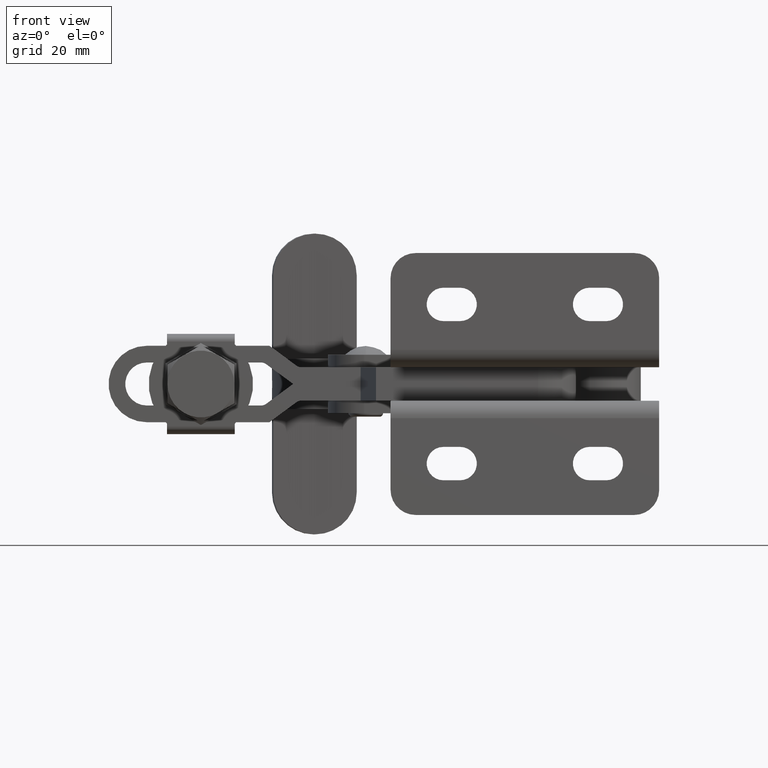
[diagram: clean part render]
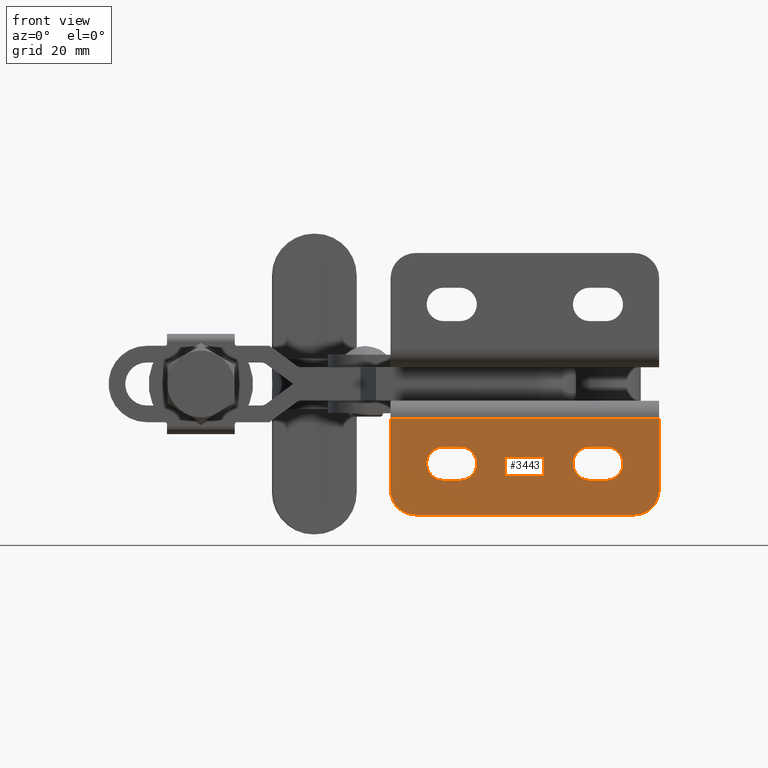
[diagram: same view with one face highlighted and labeled with its STEP entity id]
A machine part, front view. The second image highlights one B-rep face of the part: STEP entity #3443.
In plain terms, the highlighted planar face has unit normal (0, -1, 0).
Its self-contained STEP definition (entity closure, byte-faithful):
#70 = EDGE_CURVE ( 'NONE', #12517, #8680, #4146, .T. ) ;
#127 = AXIS2_PLACEMENT_3D ( 'NONE', #6460, #12532, #5439 ) ;
#146 = CARTESIAN_POINT ( 'NONE',  ( 13.36506738242341000, -52.70000000000002400, -18.67170454773021100 ) ) ;
#157 = CARTESIAN_POINT ( 'NONE',  ( -3.284932617576591200, -52.70000000000004500, -23.05000000000008600 ) ) ;
#175 = DIRECTION ( 'NONE',  ( -1.000000000000000000, -0.0000000000000000000, -0.0000000000000000000 ) ) ;
#487 = VECTOR ( 'NONE', #1230, 1000.000000000000000 ) ;
#501 = EDGE_CURVE ( 'NONE', #9544, #12517, #11744, .T. ) ;
#526 = AXIS2_PLACEMENT_3D ( 'NONE', #8471, #2386, #9485 ) ;
#624 = DIRECTION ( 'NONE',  ( 0.0000000000000000000, 0.0000000000000000000, 1.000000000000000000 ) ) ;
#636 = ORIENTED_EDGE ( 'NONE', *, *, #6320, .T. ) ;
#836 = ORIENTED_EDGE ( 'NONE', *, *, #2253, .T. ) ;
#1006 = CARTESIAN_POINT ( 'NONE',  ( -34.28493261757659400, -52.70000000000004500, -23.05000000000008600 ) ) ;
#1057 = CARTESIAN_POINT ( 'NONE',  ( 13.36506738242341000, -52.70000000000002400, -29.34999999999995200 ) ) ;
#1170 = DIRECTION ( 'NONE',  ( 0.0000000000000000000, 0.0000000000000000000, -1.000000000000000000 ) ) ;
#1181 = CARTESIAN_POINT ( 'NONE',  ( -38.28493261757659400, -52.70000000000004500, -19.05000000000008200 ) ) ;
#1190 = VERTEX_POINT ( 'NONE', #9701 ) ;
#1191 = DIRECTION ( 'NONE',  ( 1.000000000000000000, -0.0000000000000000000, -0.0000000000000000000 ) ) ;
#1230 = DIRECTION ( 'NONE',  ( 1.000000000000000000, 0.0000000000000000000, 0.0000000000000000000 ) ) ;
#1315 = CARTESIAN_POINT ( 'NONE',  ( -50.93493261757669900, -52.70000000000002400, -23.77500000000002700 ) ) ;
#1678 = LINE ( 'NONE', #7186, #12169 ) ;
#1685 = CARTESIAN_POINT ( 'NONE',  ( 0.7150673824234087300, -52.70000000000002400, -19.05000000000008200 ) ) ;
#1772 = DIRECTION ( 'NONE',  ( 1.000000000000000000, 0.0000000000000000000, 0.0000000000000000000 ) ) ;
#1777 = AXIS2_PLACEMENT_3D ( 'NONE', #3399, #10515, #4415 ) ;
#1917 = VERTEX_POINT ( 'NONE', #1181 ) ;
#1998 = DIRECTION ( 'NONE',  ( 0.0000000000000000000, 0.0000000000000000000, -1.000000000000000000 ) ) ;
#2195 = VERTEX_POINT ( 'NONE', #9770 ) ;
#2253 = EDGE_CURVE ( 'NONE', #10816, #12360, #7454, .T. ) ;
#2308 = DIRECTION ( 'NONE',  ( -0.0000000000000000000, -0.0000000000000000000, -1.000000000000000000 ) ) ;
#2386 = DIRECTION ( 'NONE',  ( 0.0000000000000000000, 1.000000000000000000, 2.635945084823746800E-016 ) ) ;
#2643 = EDGE_CURVE ( 'NONE', #7300, #7817, #6809, .T. ) ;
#2806 = FACE_BOUND ( 'NONE', #12175, .T. ) ;
#2833 = LINE ( 'NONE', #1315, #10311 ) ;
#2840 = CARTESIAN_POINT ( 'NONE',  ( -44.93493261757657100, -52.70000000000002400, -35.35000000000007200 ) ) ;
#3316 = LINE ( 'NONE', #146, #11093 ) ;
#3331 = CARTESIAN_POINT ( 'NONE',  ( -3.284932617576591200, -52.70000000000004500, -27.05000000000008200 ) ) ;
#3399 = CARTESIAN_POINT ( 'NONE',  ( 7.365067382423280400, -52.70000000000002400, -29.34999999999995200 ) ) ;
#3420 = ORIENTED_EDGE ( 'NONE', *, *, #12192, .F. ) ;
#3443 = ADVANCED_FACE ( 'NONE', ( #10895, #2806, #7881 ), #4632, .T. ) ;
#3617 = DIRECTION ( 'NONE',  ( 0.0000000000000000000, 0.0000000000000000000, -1.000000000000000000 ) ) ;
#3812 = CARTESIAN_POINT ( 'NONE',  ( -38.28493261757659400, -52.70000000000004500, -19.05000000000008200 ) ) ;
#4132 = CARTESIAN_POINT ( 'NONE',  ( -34.28493261757659400, -52.70000000000002400, -19.05000000000008200 ) ) ;
#4146 = LINE ( 'NONE', #11994, #11603 ) ;
#4415 = DIRECTION ( 'NONE',  ( 0.0000000000000000000, 0.0000000000000000000, -1.000000000000000000 ) ) ;
#4632 = PLANE ( 'NONE',  #10339 ) ;
#4863 = EDGE_CURVE ( 'NONE', #10623, #1190, #7373, .T. ) ;
#4868 = DIRECTION ( 'NONE',  ( 1.000000000000000000, -0.0000000000000000000, -0.0000000000000000000 ) ) ;
#5106 = VECTOR ( 'NONE', #175, 1000.000000000000000 ) ;
#5425 = ORIENTED_EDGE ( 'NONE', *, *, #10319, .T. ) ;
#5439 = DIRECTION ( 'NONE',  ( -1.000000000000000000, 0.0000000000000000000, 0.0000000000000000000 ) ) ;
#5461 = AXIS2_PLACEMENT_3D ( 'NONE', #1006, #8082, #1998 ) ;
#5755 = VERTEX_POINT ( 'NONE', #6080 ) ;
#5820 = EDGE_CURVE ( 'NONE', #12360, #10623, #7805, .T. ) ;
#5947 = EDGE_CURVE ( 'NONE', #12094, #1917, #7638, .T. ) ;
#6080 = CARTESIAN_POINT ( 'NONE',  ( -50.93493261757669900, -52.70000000000002400, -12.19999999999998200 ) ) ;
#6254 = ORIENTED_EDGE ( 'NONE', *, *, #70, .T. ) ;
#6320 = EDGE_CURVE ( 'NONE', #8680, #8971, #8265, .T. ) ;
#6338 = LINE ( 'NONE', #6930, #8084 ) ;
#6444 = ORIENTED_EDGE ( 'NONE', *, *, #4863, .T. ) ;
#6460 = CARTESIAN_POINT ( 'NONE',  ( -44.93493261757656400, -52.70000000000002400, -29.34999999999994800 ) ) ;
#6678 = DIRECTION ( 'NONE',  ( 0.0000000000000000000, -1.000000000000000000, 0.0000000000000000000 ) ) ;
#6763 = AXIS2_PLACEMENT_3D ( 'NONE', #157, #7207, #1170 ) ;
#6809 = CIRCLE ( 'NONE', #5461, 4.000000000000000000 ) ;
#6813 = EDGE_CURVE ( 'NONE', #2195, #8971, #3316, .T. ) ;
#6930 = CARTESIAN_POINT ( 'NONE',  ( -38.28493261757659400, -52.70000000000004500, -27.05000000000008200 ) ) ;
#7058 = ORIENTED_EDGE ( 'NONE', *, *, #2643, .T. ) ;
#7186 = CARTESIAN_POINT ( 'NONE',  ( -18.78493261757664700, -52.70000000000002400, -12.19999999999998900 ) ) ;
#7207 = DIRECTION ( 'NONE',  ( 0.0000000000000000000, 1.000000000000000000, 2.635945084823746800E-016 ) ) ;
#7277 = CARTESIAN_POINT ( 'NONE',  ( -3.284932617576591200, -52.70000000000004500, -19.05000000000008200 ) ) ;
#7300 = VERTEX_POINT ( 'NONE', #4132 ) ;
#7373 = CIRCLE ( 'NONE', #6763, 4.000000000000000000 ) ;
#7454 = CIRCLE ( 'NONE', #10060, 4.000000000000000000 ) ;
#7638 = CIRCLE ( 'NONE', #526, 4.000000000000000000 ) ;
#7641 = ORIENTED_EDGE ( 'NONE', *, *, #10576, .T. ) ;
#7805 = LINE ( 'NONE', #9233, #5106 ) ;
#7817 = VERTEX_POINT ( 'NONE', #13079 ) ;
#7881 = FACE_OUTER_BOUND ( 'NONE', #11465, .T. ) ;
#7996 = ORIENTED_EDGE ( 'NONE', *, *, #6813, .F. ) ;
#8082 = DIRECTION ( 'NONE',  ( 0.0000000000000000000, 1.000000000000000000, 2.635945084823746800E-016 ) ) ;
#8084 = VECTOR ( 'NONE', #13012, 1000.000000000000000 ) ;
#8184 = ORIENTED_EDGE ( 'NONE', *, *, #501, .T. ) ;
#8236 = LINE ( 'NONE', #7277, #487 ) ;
#8265 = CIRCLE ( 'NONE', #1777, 5.999999999999873900 ) ;
#8471 = CARTESIAN_POINT ( 'NONE',  ( -38.28493261757659400, -52.70000000000004500, -23.05000000000008600 ) ) ;
#8552 = EDGE_LOOP ( 'NONE', ( #6444, #10928, #836, #12041 ) ) ;
#8619 = CARTESIAN_POINT ( 'NONE',  ( 7.365067382423269700, -52.70000000000002400, -35.34999999999995200 ) ) ;
#8680 = VERTEX_POINT ( 'NONE', #8619 ) ;
#8971 = VERTEX_POINT ( 'NONE', #1057 ) ;
#9171 = VECTOR ( 'NONE', #1772, 1000.000000000000000 ) ;
#9233 = CARTESIAN_POINT ( 'NONE',  ( -3.284932617576591200, -52.70000000000004500, -27.05000000000008200 ) ) ;
#9340 = CARTESIAN_POINT ( 'NONE',  ( 0.7150673824234087300, -52.70000000000004500, -23.05000000000008600 ) ) ;
#9485 = DIRECTION ( 'NONE',  ( 0.0000000000000000000, 0.0000000000000000000, -1.000000000000000000 ) ) ;
#9544 = VERTEX_POINT ( 'NONE', #10251 ) ;
#9701 = CARTESIAN_POINT ( 'NONE',  ( -3.284932617576591200, -52.70000000000004500, -19.05000000000008200 ) ) ;
#9770 = CARTESIAN_POINT ( 'NONE',  ( 13.36506738242340700, -52.70000000000002400, -12.19999999999998200 ) ) ;
#10060 = AXIS2_PLACEMENT_3D ( 'NONE', #9340, #10417, #3617 ) ;
#10233 = DIRECTION ( 'NONE',  ( -0.0000000000000000000, -0.0000000000000000000, -1.000000000000000000 ) ) ;
#10251 = CARTESIAN_POINT ( 'NONE',  ( -50.93493261757669900, -52.70000000000002400, -29.34999999999994800 ) ) ;
#10311 = VECTOR ( 'NONE', #2308, 1000.000000000000000 ) ;
#10319 = EDGE_CURVE ( 'NONE', #7817, #12094, #6338, .T. ) ;
#10339 = AXIS2_PLACEMENT_3D ( 'NONE', #11734, #6678, #624 ) ;
#10417 = DIRECTION ( 'NONE',  ( 0.0000000000000000000, 1.000000000000000000, 2.635945084823746800E-016 ) ) ;
#10505 = EDGE_CURVE ( 'NONE', #1190, #10816, #8236, .T. ) ;
#10515 = DIRECTION ( 'NONE',  ( -0.0000000000000000000, -1.000000000000000000, 0.0000000000000000000 ) ) ;
#10576 = EDGE_CURVE ( 'NONE', #5755, #9544, #2833, .T. ) ;
#10623 = VERTEX_POINT ( 'NONE', #3331 ) ;
#10807 = ORIENTED_EDGE ( 'NONE', *, *, #5947, .T. ) ;
#10816 = VERTEX_POINT ( 'NONE', #1685 ) ;
#10880 = EDGE_CURVE ( 'NONE', #1917, #7300, #11552, .T. ) ;
#10895 = FACE_BOUND ( 'NONE', #8552, .T. ) ;
#10928 = ORIENTED_EDGE ( 'NONE', *, *, #10505, .T. ) ;
#11093 = VECTOR ( 'NONE', #10233, 1000.000000000000000 ) ;
#11323 = ORIENTED_EDGE ( 'NONE', *, *, #10880, .T. ) ;
#11465 = EDGE_LOOP ( 'NONE', ( #6254, #636, #7996, #3420, #7641, #8184 ) ) ;
#11552 = LINE ( 'NONE', #3812, #9171 ) ;
#11603 = VECTOR ( 'NONE', #4868, 1000.000000000000000 ) ;
#11627 = CARTESIAN_POINT ( 'NONE',  ( 0.7150673824234087300, -52.70000000000004500, -27.05000000000008600 ) ) ;
#11734 = CARTESIAN_POINT ( 'NONE',  ( 13.36506738242341000, -52.70000000000002400, -35.35000000000007200 ) ) ;
#11744 = CIRCLE ( 'NONE', #127, 6.000000000000123500 ) ;
#11994 = CARTESIAN_POINT ( 'NONE',  ( 13.36506738242341000, -52.70000000000002400, -35.35000000000007200 ) ) ;
#12041 = ORIENTED_EDGE ( 'NONE', *, *, #5820, .T. ) ;
#12047 = CARTESIAN_POINT ( 'NONE',  ( -38.28493261757659400, -52.70000000000004500, -27.05000000000008200 ) ) ;
#12094 = VERTEX_POINT ( 'NONE', #12047 ) ;
#12169 = VECTOR ( 'NONE', #1191, 1000.000000000000000 ) ;
#12175 = EDGE_LOOP ( 'NONE', ( #10807, #11323, #7058, #5425 ) ) ;
#12192 = EDGE_CURVE ( 'NONE', #5755, #2195, #1678, .T. ) ;
#12360 = VERTEX_POINT ( 'NONE', #11627 ) ;
#12517 = VERTEX_POINT ( 'NONE', #2840 ) ;
#12532 = DIRECTION ( 'NONE',  ( -5.782411586589235400E-016, -1.000000000000000000, 0.0000000000000000000 ) ) ;
#13012 = DIRECTION ( 'NONE',  ( -1.000000000000000000, -0.0000000000000000000, -0.0000000000000000000 ) ) ;
#13079 = CARTESIAN_POINT ( 'NONE',  ( -34.28493261757659400, -52.70000000000004500, -27.05000000000008600 ) ) ;